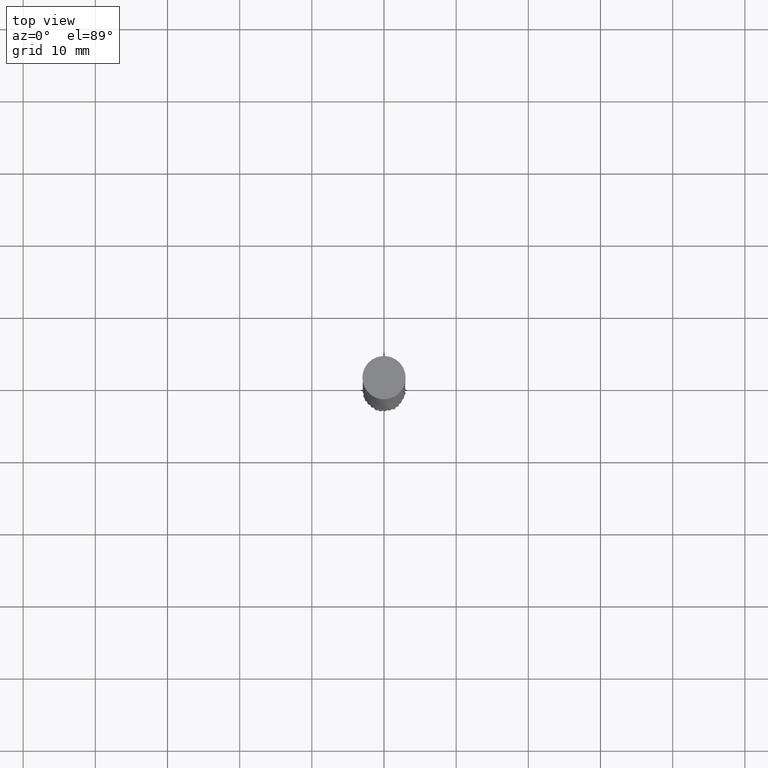
[diagram: clean part render]
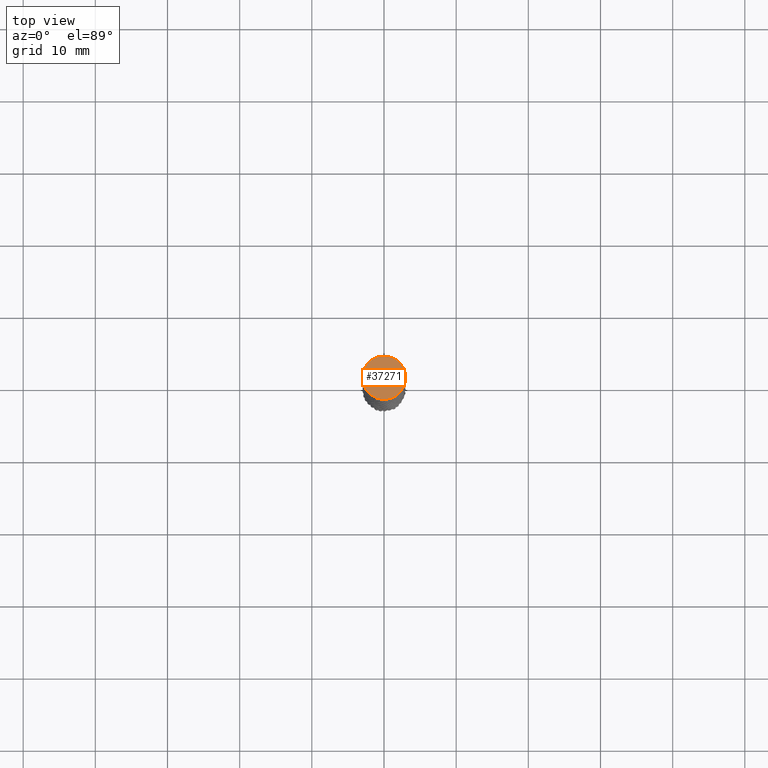
[diagram: same view with one face highlighted and labeled with its STEP entity id]
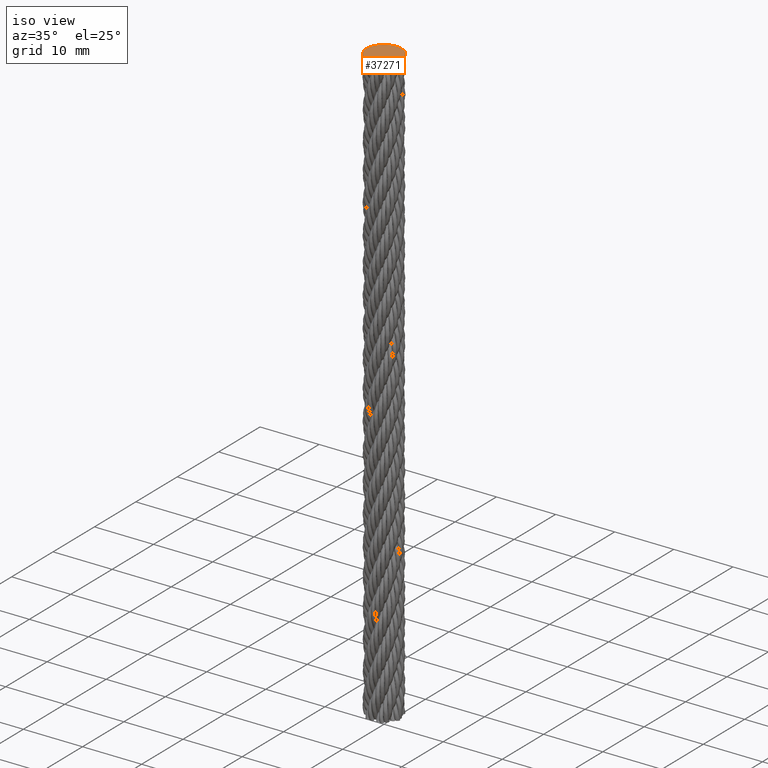
[diagram: same view with one face highlighted and labeled with its STEP entity id]
A machine part, top view. The second image highlights one B-rep face of the part: STEP entity #37271.
A second angle (iso view) of the same face is appended — the face is thin or edge-on in the first view.
In plain terms, the highlighted planar face has unit normal (0, 0, 1).
Its self-contained STEP definition (entity closure, byte-faithful):
#11297 = FACE_OUTER_BOUND ( 'NONE', #38978, .T. ) ;
#12788 = DIRECTION ( 'NONE',  ( 1.000000000000000000, 0.000000000000000000, 0.000000000000000000 ) ) ;
#12994 = PLANE ( 'NONE',  #46504 ) ;
#16639 = DIRECTION ( 'NONE',  ( 0.000000000000000000, 0.000000000000000000, 1.000000000000000000 ) ) ;
#16815 = DIRECTION ( 'NONE',  ( 1.000000000000000000, 0.000000000000000000, -0.000000000000000000 ) ) ;
#25291 = CARTESIAN_POINT ( 'NONE',  ( 0.000000000000000000, 0.000000000000000000, 1.000000000000000000 ) ) ;
#25700 = ORIENTED_EDGE ( 'NONE', *, *, #44460, .T. ) ;
#32506 = CARTESIAN_POINT ( 'NONE',  ( 0.000000000000000000, 0.000000000000000000, 1.000000000000000000 ) ) ;
#37097 = CIRCLE ( 'NONE', #41123, 3.000000000000000444 ) ;
#37271 = ADVANCED_FACE ( 'NONE', ( #11297 ), #12994, .T. ) ;
#38978 = EDGE_LOOP ( 'NONE', ( #25700 ) ) ;
#41123 = AXIS2_PLACEMENT_3D ( 'NONE', #25291, #49759, #12788 ) ;
#43372 = VERTEX_POINT ( 'NONE', #50133 ) ;
#44460 = EDGE_CURVE ( 'NONE', #43372, #43372, #37097, .T. ) ;
#46504 = AXIS2_PLACEMENT_3D ( 'NONE', #32506, #16639, #16815 ) ;
#49759 = DIRECTION ( 'NONE',  ( 0.000000000000000000, 0.000000000000000000, 1.000000000000000000 ) ) ;
#50133 = CARTESIAN_POINT ( 'NONE',  ( 3.000000000000000444, 0.000000000000000000, 1.000000000000000000 ) ) ;